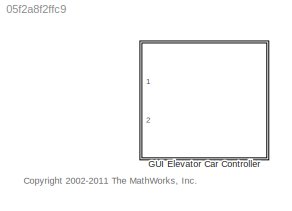
MODEL slx_05f2a8f2ffc9
KIND library
CONFIG AbsTol = auto
CONFIG EnableMultiTasking = on
CONFIG FixedStep = 1
CONFIG MaxStep = auto
CONFIG MinStep = auto
CONFIG RelTol = 1e-3
CONFIG SampleTimeConstraint = Unconstrained
CONFIG Solver = FixedStepDiscrete
CONFIG SolverName = FixedStepDiscrete
CONFIG StartTime = 0.0
CONFIG StopTime = 10.0
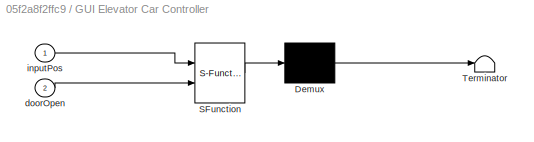
BLOCK [SubSystem] GUI Elevator Car Controller
  ErrorFcn = Stateflow.Translate.translate
  PermitHierarchicalResolution = ExplicitOnly
  Ports = [2]
  RequestExecContextInheritance = off
  SFBlockType = Chart
  TreatAsAtomicUnit = on
  Variant = off
BLOCK [Demux] GUI Elevator Car Controller/ Demux 
  Outputs = 1
  Ports = [1, 1]
BLOCK [S-Function] GUI Elevator Car Controller/ SFunction 
  EnableBusSupport = off
  FunctionName = sf_sfun
  Parameters = carID
  PortCounts = [2 1]
  Ports = [2, 1]
  SFcnIsStateOwnerBlock = off
  SFunctionDeploymentMode = off
  Tag = Stateflow S-Function sf_gui_elevator_controller_lib 3
BLOCK [Terminator] GUI Elevator Car Controller/ Terminator 
BLOCK [Inport] GUI Elevator Car Controller/doorOpen
  IconDisplay = Port number
  Port = 2
BLOCK [Inport] GUI Elevator Car Controller/inputPos
  IconDisplay = Port number
ANNOTATION (root): <copyright redacted>
CHART GUI Elevator Car Controller states=7 transitions=21
  STATE_LABEL 'Controller'
  STATE_LABEL 'close_door'
  STATE_LABEL "{ml.sf_elevator_gui('close_door', carID);}"
  STATE_LABEL 'open_door'
  STATE_LABEL "{ml.sf_elevator_gui('open_door', carID);}"
  STATE_LABEL 'move(pos)'
  STATE_LABEL "{ml.sf_elevator_gui('move_car', carID, pos);}"
  STATE_LABEL 'deactivate_hall_button(pos)'
  STATE_LABEL "{ml.sf_elevator_gui('deactivate', 'hall', get_floor_number(pos));}"
  STATE_LABEL 'deactivate_car_button(pos)'
  STATE_LABEL "{floorNum = get_floor_number(pos);\nml.sf_elevator_gui('deactivate',carID, floorNum);}"
  STATE_LABEL 'floorNumber = get_floor_number(pos)'
  STATE_LABEL '{floorNumber = ml.round(pos);}'
  STATE_LABEL '[hasChanged(inputPos)]'
  STATE_LABEL '{move(inputPos);}'
  STATE_LABEL '[hasChanged(doorOpen)]'
  STATE_LABEL '[doorOpen]'
  STATE_LABEL '{close_door();}'
  STATE_LABEL '{open_door();}'
  STATE_LABEL '{deactivate_hall_button(inputPos);\n deactivate_car_button(inputPos);}'
  STATE_LABEL 'close_door'
  STATE_LABEL "{ml.sf_elevator_gui('close_door', carID);}"
  STATE_LABEL 'open_door'
  STATE_LABEL "{ml.sf_elevator_gui('open_door', carID);}"
  STATE_LABEL 'move(pos)'
  STATE_LABEL "{ml.sf_elevator_gui('move_car', carID, pos);}"
  STATE_LABEL 'deactivate_hall_button(pos)'
  STATE_LABEL "{ml.sf_elevator_gui('deactivate', 'hall', get_floor_number(pos));}"
  STATE_LABEL 'deactivate_car_button(pos)'
  STATE_LABEL "{floorNum = get_floor_number(pos);\nml.sf_elevator_gui('deactivate',carID, floorNum);}"
  STATE_LABEL 'floorNumber = get_floor_number(pos)'
  STATE_LABEL '{floorNumber = ml.round(pos);}'
